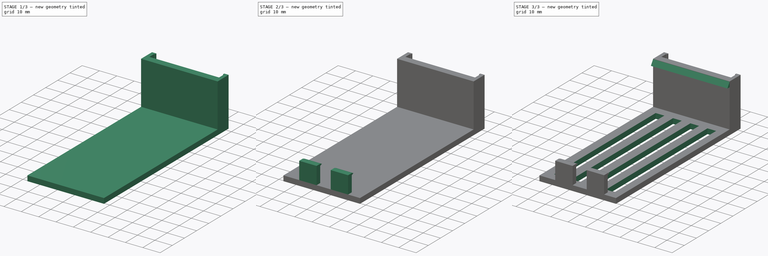
[diagram: build sequence overview — one tinted view per stage of 3, left to right]
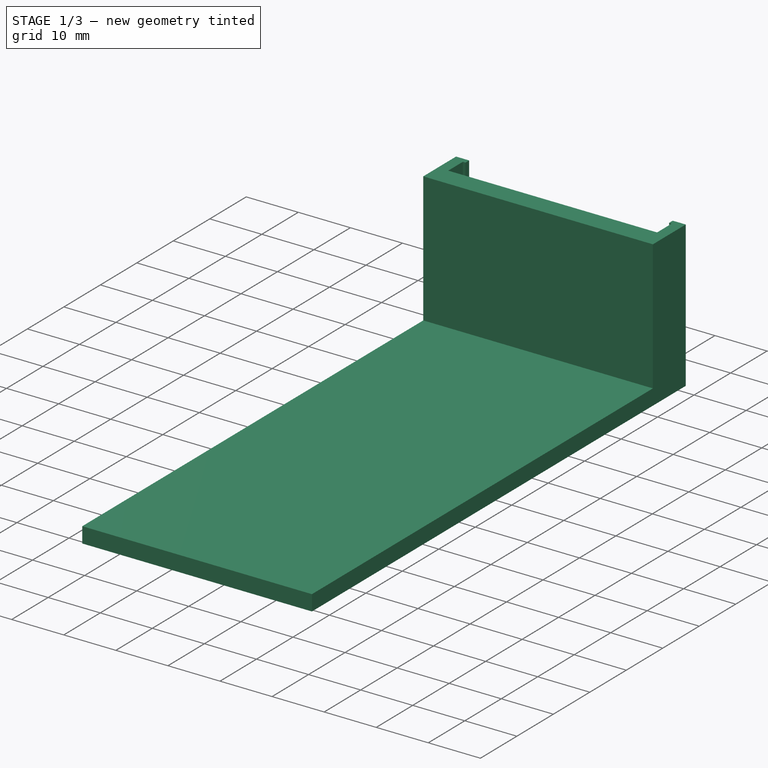
[diagram: stage 1 of 3 — iso view after this stage's code; geometry added in this stage tinted green]
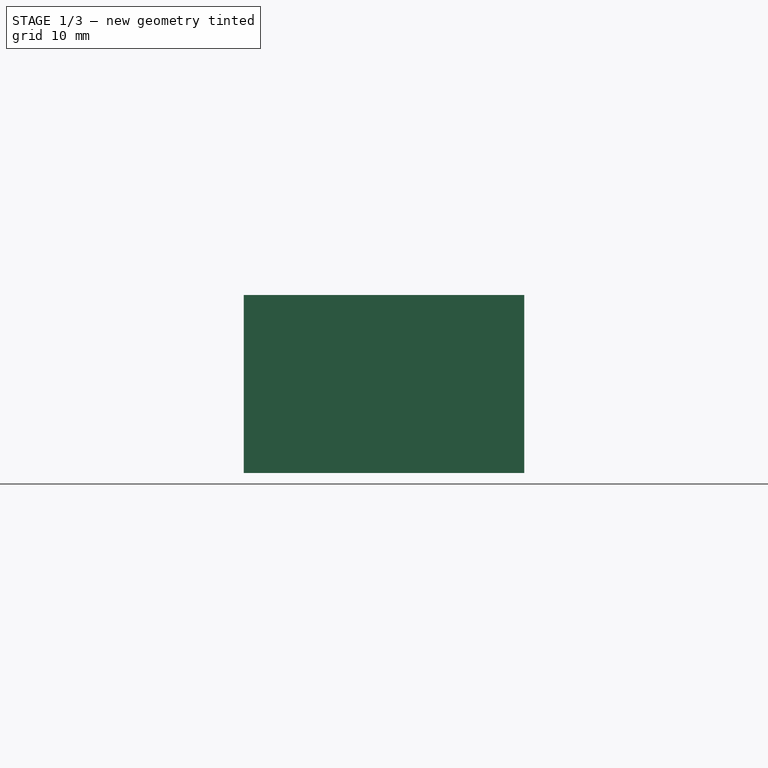
[diagram: stage 1 of 3 — front view after this stage's code; geometry added in this stage tinted green]
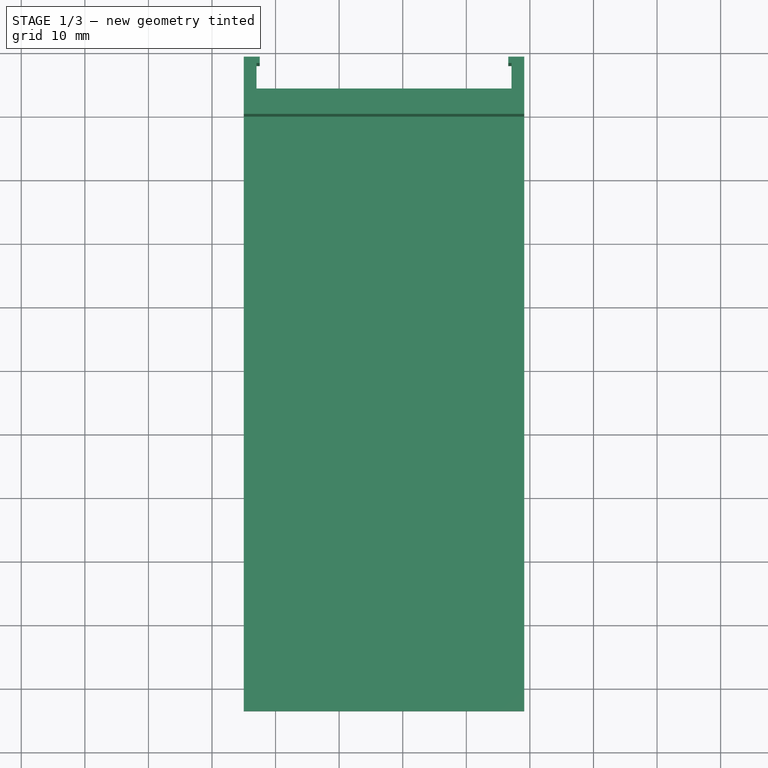
[diagram: stage 1 of 3 — top view after this stage's code; geometry added in this stage tinted green]
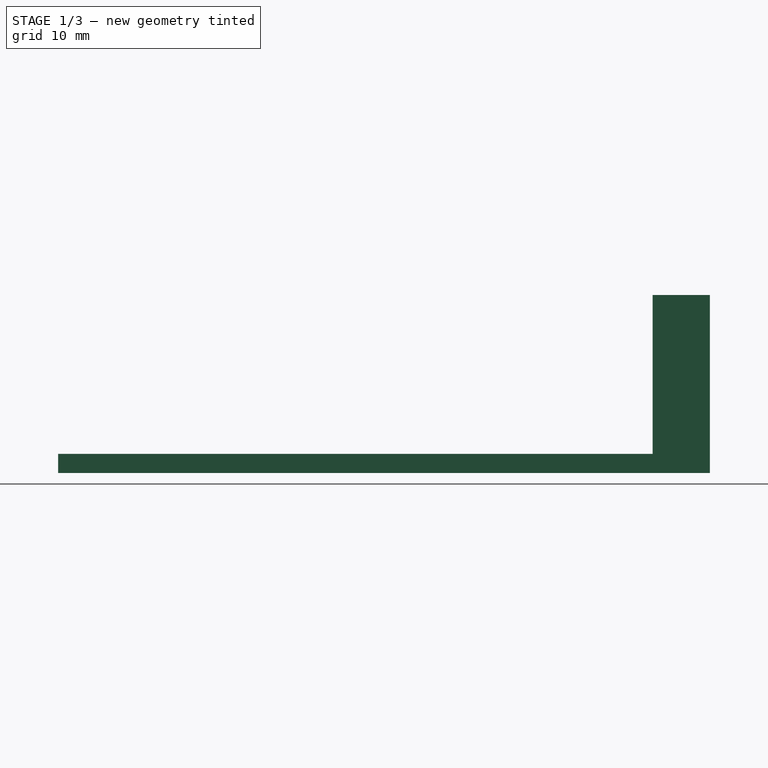
[diagram: stage 1 of 3 — right view after this stage's code; geometry added in this stage tinted green]
FCSTD DOCUMENT  (FreeCAD 0.22R35822 (Git))
Label: ender 3 v3 se mount - revised
License: All rights reserved
LicenseURL: http://en.wikipedia.org/wiki/All_rights_reserved
objects: Sketcher::SketchObject×7, PartDesign::Pad×5, PartDesign::Pocket×1, PartDesign::Body×1
note: 20 computed .brp shape members not serialized (recipe doc carries the construction recipe); baked Part::Feature solids carry a one-line shape summary decoded from their .brp

FEATURE [Sketcher::SketchObject] Sketch
  FullyConstrained = false
  MapMode = 5
  Support = -> [XY_Plane001]
  sketch-geometry (13):
    g0: LineSegment StartX=-4.99733 StartY=9 StartZ=0 EndX=-2.49733 EndY=9 EndZ=0
    g1: LineSegment StartX=-2.49733 StartY=8 StartZ=0 EndX=-2.49733 EndY=9 EndZ=0
    g2: LineSegment StartX=-2.49733 StartY=8 StartZ=0 EndX=-2.99733 EndY=8 EndZ=0
    g3: LineSegment StartX=-2.99733 StartY=8 StartZ=0 EndX=-2.99733 EndY=4 EndZ=0
    g4: LineSegment StartX=-2.99733 StartY=4 StartZ=0 EndX=37.1027 EndY=4 EndZ=0
    g5: LineSegment StartX=37.1027 StartY=4 StartZ=0 EndX=37.1027 EndY=8 EndZ=0
    g6: LineSegment StartX=37.1027 StartY=8 StartZ=0 EndX=36.6027 EndY=8 EndZ=0
    g7: LineSegment StartX=36.6027 StartY=8 StartZ=0 EndX=36.6027 EndY=9 EndZ=0
    g8: LineSegment StartX=36.6027 StartY=9 StartZ=0 EndX=39.1027 EndY=9 EndZ=0
    g9: LineSegment StartX=39.1027 StartY=9 StartZ=0 EndX=39.1027 EndY=0 EndZ=0
    g10: LineSegment StartX=-4.99733 StartY=9 StartZ=0 EndX=-4.99733 EndY=4 EndZ=0
    g11: LineSegment StartX=39.1027 StartY=0 StartZ=0 EndX=-4.99733 EndY=0 EndZ=0
    g12: LineSegment StartX=-4.99733 StartY=4 StartZ=0 EndX=-4.99733 EndY=0 EndZ=0
  constraints (38):
    c: Coincident(g2,g1)
    c: Coincident(g3,g2)
    c: Vertical(g3)
    c: Horizontal(g4)
    c: Coincident(g6,g5)
    c: Coincident(g7,g6)
    c: Vertical(g7)
    c: Coincident(g8,g7)
    c: Horizontal(g8)
    c: Coincident(g9,g8)
    c: Vertical(g9)
    c: Coincident(g1,g0)
    c: DistanceY(g5,g5) = 4
    c: DistanceY(g3,g3) = 4
    c: DistanceY(g9,g9) = 9
    c: DistanceX(g8,g8) = 2.5
    c: DistanceY(g7,g7) = 1
    c: DistanceX(g6,g6) = 0.5
    c: Parallel(g8,g6)
    c: Parallel(g9,g5)
    c: DistanceX(g2,g2) = 0.5
    c: DistanceY(g1,g1) = 1
    c: DistanceX(g0,g0) = 2.5
    c: Angle(g0,g1) = 1.5708
    c: Angle(g3,g2) = 1.5708
    c: Coincident(g4,g3)
    c: Coincident(g5,g4)
    c: Coincident(g10,g0)
    c: Parallel(g3,g10)
    c: Angle(g10,g0) = 1.5708
    c: Horizontal(g11)
    c: Coincident(g11,g9)
    c: DistanceY(g10,g10) = 5
    c: PointOnObject(g12,g-1)
    c: DistanceX(g4,g4) = 40.1
    c: Vertical(g12)
    c: Coincident(g11,g12)
    c: DistanceX(g11,g11) = 44.1  'ClampLength'
FEATURE [PartDesign::Pad] Pad
  Direction = (0,0,1)
  Length = 28
  Length2 = 10
  Profile = -> Sketch
  ReferenceAxis = -> Sketch [N_Axis]
  Type = 0
FEATURE [Sketcher::SketchObject] Sketch001
  AttachmentOffset = pos=(0,0,-29.5) rot=(0,0,1;0rad)
  ExternalGeometry = -> [Pad]
  FullyConstrained = true
  MapMode = 5
  Placement = pos=(9.60267,0,0) rot=(0.57735,0.57735,0.57735;2.0944rad)
  Support = -> [Pad]
  expr: Constraints[2] = Pad.Length
  sketch-geometry (9):
    g0: LineSegment StartX=0.1 StartY=28 StartZ=0 EndX=0.1 EndY=0 EndZ=0
    g1: LineSegment StartX=0.1 StartY=1.1e-15 StartZ=0 EndX=0.1 EndY=3 EndZ=0
    g2: LineSegment StartX=0.1 StartY=3 StartZ=0 EndX=-90.4 EndY=3 EndZ=0
    g3: LineSegment StartX=-93.4 StartY=13.0307 StartZ=0 EndX=-93.4 EndY=1.8e-15 EndZ=0
    g4: LineSegment StartX=-93.4 StartY=1.1e-15 StartZ=0 EndX=0.1 EndY=1.1e-15 EndZ=0
    g5: LineSegment StartX=-93.4 StartY=13.0307 StartZ=0 EndX=-90.4 EndY=13.0307 EndZ=0
    g6: LineSegment StartX=-90.4 StartY=11.5 StartZ=0 EndX=-90.4 EndY=3 EndZ=0
    g7: LineSegment StartX=-90.4 StartY=13.0307 StartZ=0 EndX=-88.5522 EndY=12.2654 EndZ=0
    g8: LineSegment StartX=-88.5522 StartY=12.2654 StartZ=0 EndX=-90.4 EndY=11.5 EndZ=0
  constraints (27):
    c: Vertical(g0)
    c: DistanceX(g-3,g0) = 0.1
    c: DistanceY(g0,g0) = 28
    c: DistanceY(g0,g-3) = 0
    c: Coincident(g1,g2)
    c: Coincident(g3,g4)
    c: Coincident(g4,g1)
    c: Vertical(g1)
    c: Vertical(g3)
    c: Horizontal(g2)
    c: Horizontal(g4)
    c: Coincident(g1,g0)
    c: Coincident(g3,g5)
    c: Horizontal(g5)
    c: Coincident(g6,g2)
    c: DistanceX(g5,g5) = 3
    c: Vertical(g6)
    c: DistanceX(g2,g2) = 90.5
    c: Coincident(g7,g5)
    c: Coincident(g6,g8)
    c: DistanceY(g6,g6) = 8.5
    c: Vertical(g5,g6)
    c: DistanceY(g3,g2) = 3
    c: Coincident(g8,g7)
    c: Angle(g7,g8) = 0.785398
    c: Distance(g7,g7) = 2
    c: Equal(g8,g7)
FEATURE [Sketcher::SketchObject] Sketch002
  ExternalGeometry = -> [Pad]
  FullyConstrained = true
  MapMode = 5
  Placement = pos=(0,0,0) rot=(1,0,0;1.5708rad)
  Support = -> [Pad]
  sketch-geometry (4):
    g0: LineSegment StartX=-4.99733 StartY=0 StartZ=0 EndX=39.1027 EndY=0 EndZ=0
    g1: LineSegment StartX=39.1027 StartY=0 StartZ=0 EndX=39.1027 EndY=3 EndZ=0
    g2: LineSegment StartX=39.1027 StartY=3 StartZ=0 EndX=-4.99733 EndY=3 EndZ=0
    g3: LineSegment StartX=-4.99733 StartY=3 StartZ=0 EndX=-4.99733 EndY=0 EndZ=0
  constraints (11):
    c: Coincident(g0,g1)
    c: Coincident(g1,g2)
    c: Coincident(g2,g3)
    c: Coincident(g3,g0)
    c: Horizontal(g0)
    c: Horizontal(g2)
    c: Vertical(g1)
    c: Vertical(g3)
    c: Coincident(g0,g-5)
    c: PointOnObject(g1,g-4)
    c: DistanceY(g1,g1) = 3
FEATURE [PartDesign::Pad] Pad001
  BaseFeature = -> Pad
  Direction = (0,-1,2e-16)
  Length = 93.5
  Length2 = 10
  Profile = -> Sketch002
  ReferenceAxis = -> Sketch002 [N_Axis]
  Type = 0
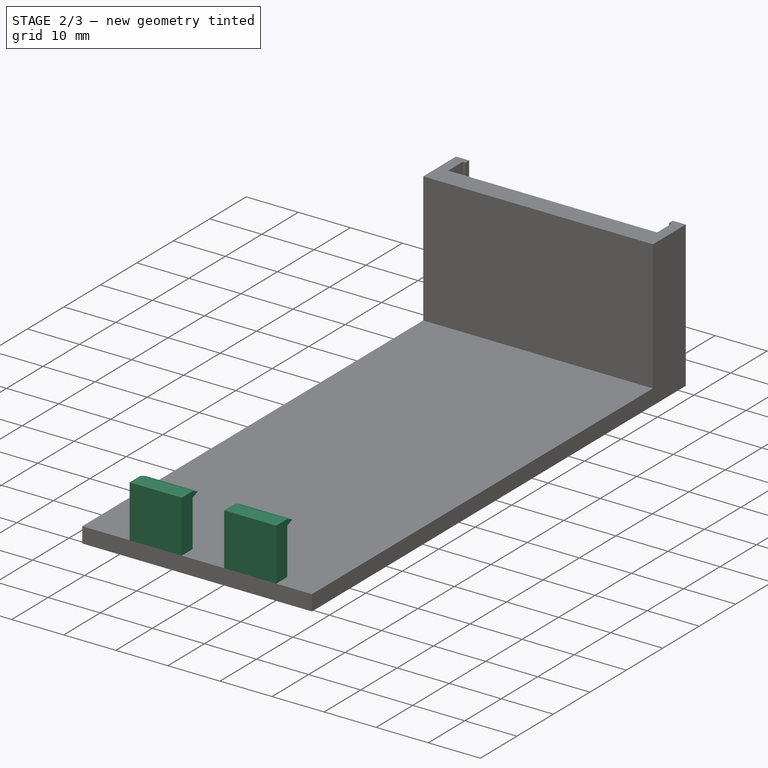
[diagram: stage 2 of 3 — iso view after this stage's code; geometry added in this stage tinted green]
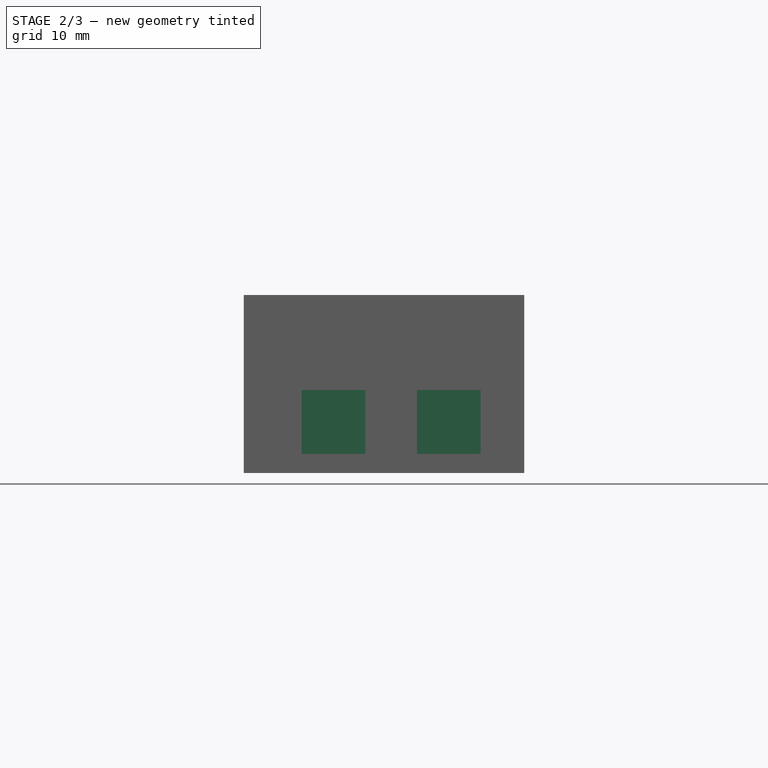
[diagram: stage 2 of 3 — front view after this stage's code; geometry added in this stage tinted green]
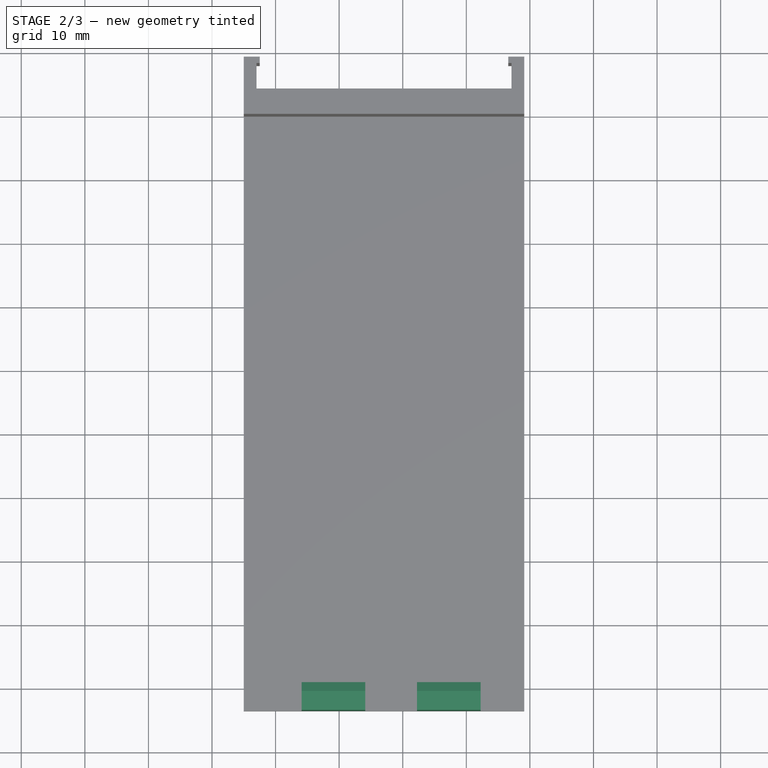
[diagram: stage 2 of 3 — top view after this stage's code; geometry added in this stage tinted green]
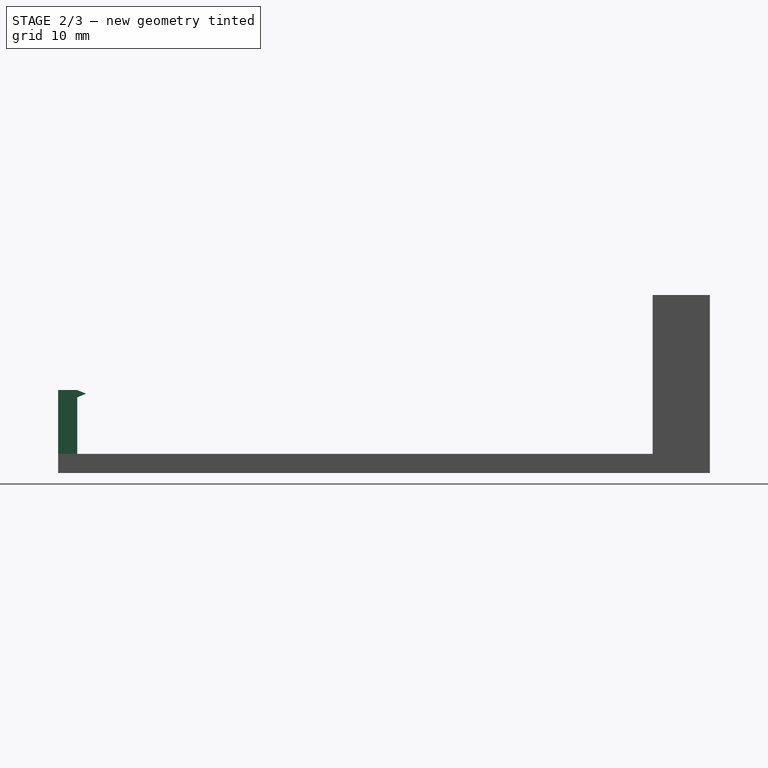
[diagram: stage 2 of 3 — right view after this stage's code; geometry added in this stage tinted green]
FEATURE [Sketcher::SketchObject] Sketch003
  AttachmentOffset = pos=(0,0,-30) rot=(0,0,1;0rad)
  ExternalGeometry = -> [Pad001]
  FullyConstrained = false
  MapMode = 5
  Placement = pos=(9.10267,0,0) rot=(0.57735,0.57735,0.57735;2.0944rad)
  Support = -> [Pad001]
  sketch-geometry (7):
    g0: LineSegment StartX=-93.5 StartY=2.9 StartZ=0 EndX=-79.2734 EndY=2.9 EndZ=0
    g1: LineSegment StartX=-93.5 StartY=2.9 StartZ=0 EndX=-93.5 EndY=13.0481 EndZ=0
    g2: LineSegment StartX=-93.5 StartY=13.0481 StartZ=0 EndX=-90.5 EndY=13.0481 EndZ=0
    g3: LineSegment StartX=-90.5 StartY=13.0481 StartZ=0 EndX=-89.1142 EndY=12.474 EndZ=0
    g4: LineSegment StartX=-89.1142 StartY=12.474 StartZ=0 EndX=-90.5 EndY=11.9 EndZ=0
    g5: LineSegment StartX=-90.5 StartY=11.9 StartZ=0 EndX=-90.5 EndY=2.9 EndZ=0
    g6: LineSegment StartX=-90.5 StartY=2.9 StartZ=0 EndX=-93.5 EndY=2.9 EndZ=0
  constraints (20):
    c: Horizontal(g0)
    c: DistanceY(g0,g-3) = 0.1
    c: Coincident(g0,g1)
    c: Vertical(g1)
    c: Coincident(g1,g2)
    c: Horizontal(g2)
    c: Coincident(g2,g3)
    c: Coincident(g3,g4)
    c: Coincident(g4,g5)
    c: PointOnObject(g5,g0)
    c: Vertical(g5)
    c: Coincident(g5,g6)
    c: Coincident(g6,g1)
    c: DistanceX(g1,g-3) = 0
    c: DistanceX(g6,g6) = 3
    c: Distance(g2,g2) = 3
    c: DistanceY(g5,g5) = 9
    c: Angle(g3,g4) = 0.785398
    c: Distance(g3,g3) = 1.5
    c: Distance(g4,g4) = 1.5
FEATURE [Sketcher::SketchObject] Sketch004
  AttachmentOffset = pos=(0,0,-11.85) rot=(0,0,1;0rad)
  ExternalGeometry = -> [Pad001]
  FullyConstrained = false
  MapMode = 5
  Placement = pos=(27.2527,0,0) rot=(0.57735,0.57735,0.57735;2.0944rad)
  Support = -> [Pad001]
  sketch-geometry (7):
    g0: LineSegment StartX=-93.5 StartY=2.9 StartZ=0 EndX=-79.2734 EndY=2.9 EndZ=0
    g1: LineSegment StartX=-93.5 StartY=2.9 StartZ=0 EndX=-93.5 EndY=13.0481 EndZ=0
    g2: LineSegment StartX=-93.5 StartY=13.0481 StartZ=0 EndX=-90.5 EndY=13.0481 EndZ=0
    g3: LineSegment StartX=-90.5 StartY=13.0481 StartZ=0 EndX=-89.1142 EndY=12.474 EndZ=0
    g4: LineSegment StartX=-89.1142 StartY=12.474 StartZ=0 EndX=-90.5 EndY=11.9 EndZ=0
    g5: LineSegment StartX=-90.5 StartY=11.9 StartZ=0 EndX=-90.5 EndY=2.9 EndZ=0
    g6: LineSegment StartX=-90.5 StartY=2.9 StartZ=0 EndX=-93.5 EndY=2.9 EndZ=0
  constraints (20):
    c: Horizontal(g0)
    c: DistanceY(g0,g-3) = 0.1
    c: Coincident(g0,g1)
    c: Vertical(g1)
    c: Coincident(g1,g2)
    c: Horizontal(g2)
    c: Coincident(g2,g3)
    c: Coincident(g3,g4)
    c: Coincident(g4,g5)
    c: PointOnObject(g5,g0)
    c: Vertical(g5)
    c: Coincident(g5,g6)
    c: Coincident(g6,g1)
    c: DistanceX(g1,g-3) = 0
    c: DistanceX(g6,g6) = 3
    c: Distance(g2,g2) = 3
    c: DistanceY(g5,g5) = 9
    c: Angle(g3,g4) = 0.785398
    c: Distance(g3,g3) = 1.5
    c: Distance(g4,g4) = 1.5
FEATURE [PartDesign::Pad] Pad002
  BaseFeature = -> Pad001
  Direction = (1,0,0)
  Length = 10
  Length2 = 10
  Midplane = true
  Profile = -> Sketch003
  ReferenceAxis = -> Sketch003 [N_Axis]
  Type = 0
FEATURE [PartDesign::Pad] Pad003
  BaseFeature = -> Pad002
  Direction = (1,0,0)
  Length = 10
  Length2 = 10
  Midplane = true
  Profile = -> Sketch004
  ReferenceAxis = -> Sketch004 [N_Axis]
  Type = 0
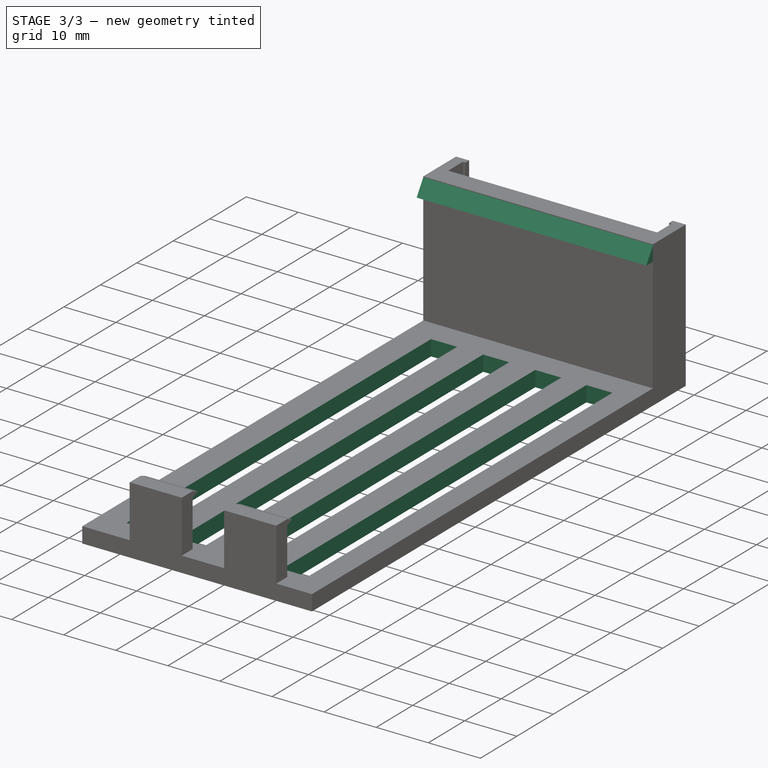
[diagram: stage 3 of 3 — iso view after this stage's code; geometry added in this stage tinted green]
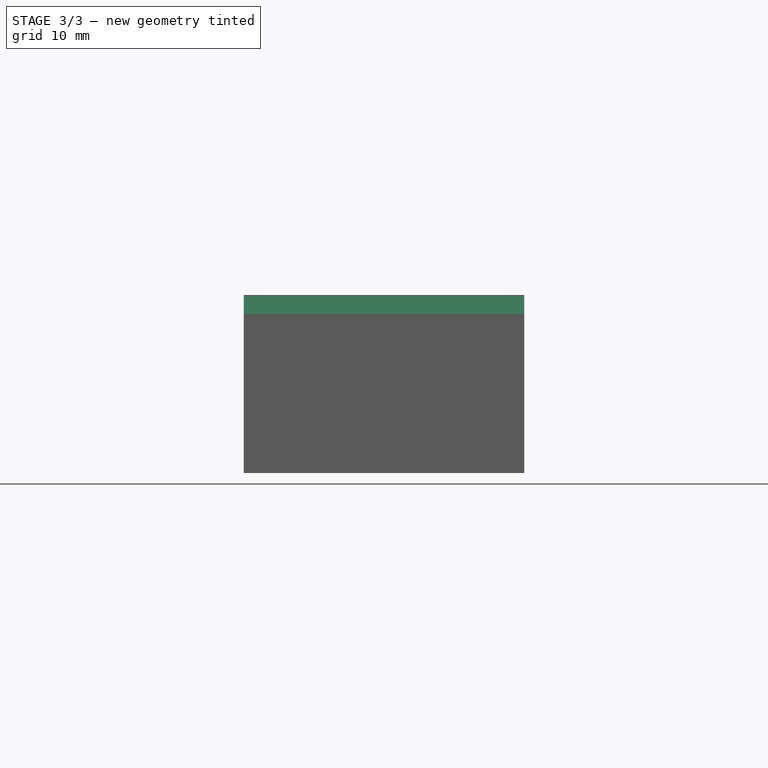
[diagram: stage 3 of 3 — front view after this stage's code; geometry added in this stage tinted green]
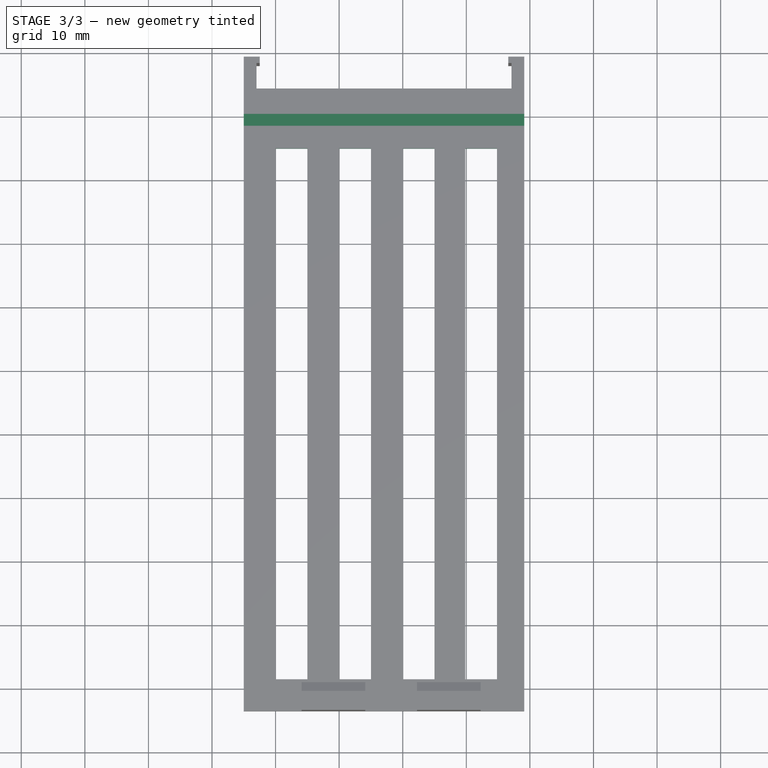
[diagram: stage 3 of 3 — top view after this stage's code; geometry added in this stage tinted green]
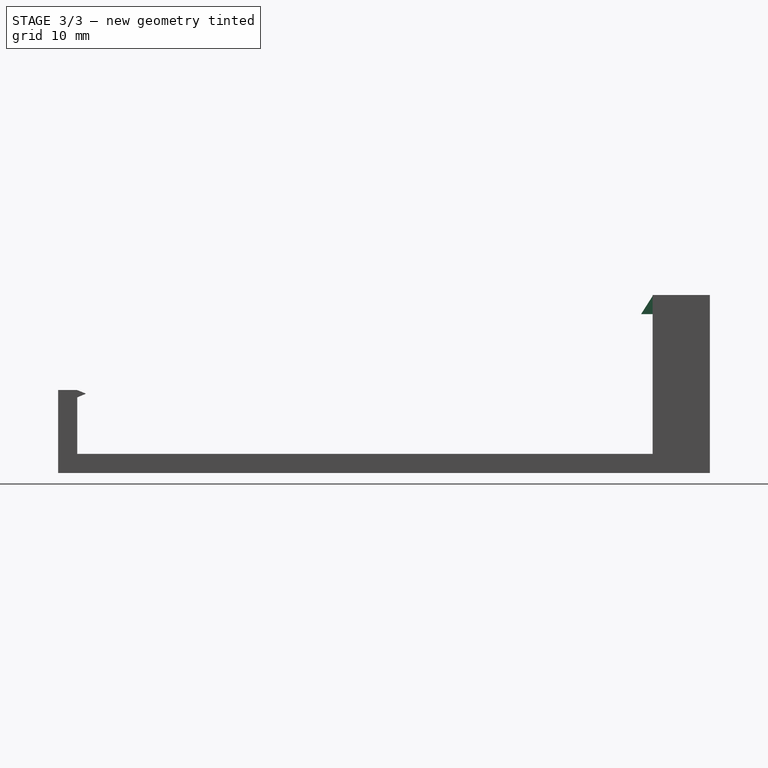
[diagram: stage 3 of 3 — right view after this stage's code; geometry added in this stage tinted green]
FEATURE [Sketcher::SketchObject] Sketch005
  ExternalGeometry = -> [Pad003]
  FullyConstrained = false
  MapMode = 5
  Placement = pos=(39.1027,0,0) rot=(0.57735,0.57735,0.57735;2.0944rad)
  Support = -> [Pad003]
  sketch-geometry (4):
    g0: LineSegment StartX=0.1 StartY=28 StartZ=0 EndX=0.1 EndY=13.8722 EndZ=0
    g1: LineSegment StartX=0.1 StartY=28 StartZ=0 EndX=-1.80795 EndY=25 EndZ=0
    g2: LineSegment StartX=-1.80795 StartY=25 StartZ=0 EndX=0.1 EndY=25 EndZ=0
    g3: LineSegment StartX=0.1 StartY=25 StartZ=0 EndX=0.1 EndY=28 EndZ=0
  constraints (11):
    c: Vertical(g0)
    c: DistanceX(g-3,g0) = 0.1
    c: DistanceY(g0,g-3) = 0
    c: PointOnObject(g1,g0)
    c: Coincident(g1,g2)
    c: PointOnObject(g2,g0)
    c: DistanceY(g-3,g2) = 22
    c: Coincident(g3,g2)
    c: Coincident(g3,g1)
    c: DistanceY(g1,g-3) = 0
    c: Horizontal(g2)
FEATURE [PartDesign::Pad] Pad004
  BaseFeature = -> Pad003
  Direction = (1,0,0)
  Length = 44.1
  Length2 = 10
  Profile = -> Sketch005
  ReferenceAxis = -> Sketch005 [N_Axis]
  Reversed = true
  Type = 0
  expr: Length = Sketch.Constraints.ClampLength
FEATURE [Sketcher::SketchObject] Sketch006
  ExternalGeometry = -> [Pad004]
  FullyConstrained = false
  MapMode = 5
  Placement = pos=(0,7e-16,3) rot=(0,0,1;0rad)
  Support = -> [Pad004]
  sketch-geometry (16):
    g0: LineSegment StartX=29.8287 StartY=-5 StartZ=0 EndX=29.8287 EndY=-88.5 EndZ=0
    g1: LineSegment StartX=29.8287 StartY=-88.5 StartZ=0 EndX=34.8287 EndY=-88.5 EndZ=0
    g2: LineSegment StartX=34.8287 StartY=-88.5 StartZ=0 EndX=34.8287 EndY=-5 EndZ=0
    g3: LineSegment StartX=34.8287 StartY=-5 StartZ=0 EndX=29.8287 EndY=-5 EndZ=0
    g4: LineSegment StartX=0.00266775 StartY=-5 StartZ=0 EndX=0.00266775 EndY=-88.5 EndZ=0
    g5: LineSegment StartX=0.00266775 StartY=-88.5 StartZ=0 EndX=5.00267 EndY=-88.5 EndZ=0
    g6: LineSegment StartX=5.00267 StartY=-88.5 StartZ=0 EndX=5.00267 EndY=-5 EndZ=0
    g7: LineSegment StartX=5.00267 StartY=-5 StartZ=0 EndX=0.00266775 EndY=-5 EndZ=0
    g8: LineSegment StartX=10.0027 StartY=-5 StartZ=0 EndX=10.0027 EndY=-88.5 EndZ=0
    g9: LineSegment StartX=10.0027 StartY=-88.5 StartZ=0 EndX=15.0027 EndY=-88.5 EndZ=0
    g10: LineSegment StartX=15.0027 StartY=-88.5 StartZ=0 EndX=15.0027 EndY=-5 EndZ=0
    g11: LineSegment StartX=15.0027 StartY=-5 StartZ=0 EndX=10.0027 EndY=-5 EndZ=0
    g12: LineSegment StartX=20.0027 StartY=-5 StartZ=0 EndX=20.0027 EndY=-88.5 EndZ=0
    g13: LineSegment StartX=20.0027 StartY=-88.5 StartZ=0 EndX=25.0027 EndY=-88.5 EndZ=0
    g14: LineSegment StartX=25.0027 StartY=-88.5 StartZ=0 EndX=25.0027 EndY=-5 EndZ=0
    g15: LineSegment StartX=25.0027 StartY=-5 StartZ=0 EndX=20.0027 EndY=-5 EndZ=0
  constraints (47):
    c: Coincident(g0,g1)
    c: Coincident(g1,g2)
    c: Coincident(g2,g3)
    c: Coincident(g3,g0)
    c: Vertical(g0)
    c: Vertical(g2)
    c: Horizontal(g1)
    c: Horizontal(g3)
    c: Distance(g1,g1) = 5
    c: DistanceY(g2,g-3) = 5
    c: DistanceY(g-3,g1) = 5
    c: Coincident(g4,g5)
    c: Coincident(g5,g6)
    c: Coincident(g6,g7)
    c: Coincident(g7,g4)
    c: Vertical(g4)
    c: Vertical(g6)
    c: Horizontal(g5)
    c: Horizontal(g7)
    c: DistanceX(g-4,g4) = 5
    c: Equal(g7,g3)
    c: DistanceY(g-4,g4) = 5
    c: Coincident(g8,g9)
    c: Coincident(g9,g10)
    c: Coincident(g10,g11)
    c: Coincident(g11,g8)
    c: Vertical(g8)
    c: Vertical(g10)
    c: Horizontal(g9)
    c: Horizontal(g11)
    c: Equal(g11,g7)
    c: Horizontal(g8,g6)
    c: Horizontal(g6,g0)
    c: Horizontal(g4,g8)
    c: DistanceX(g6,g8) = 5
    c: Coincident(g12,g13)
    c: Coincident(g13,g14)
    c: Coincident(g14,g15)
    c: Coincident(g15,g12)
    c: Vertical(g12)
    c: Vertical(g14)
    c: Horizontal(g13)
    c: Horizontal(g15)
    c: Equal(g15,g11)
    c: Horizontal(g12,g10)
    c: Horizontal(g12,g9)
    c: DistanceX(g10,g12) = 5
FEATURE [PartDesign::Pocket] Pocket
  BaseFeature = -> Pad004
  Direction = (0,0,-1)
  Length = 5
  Length2 = 5
  Profile = -> Sketch006
  ReferenceAxis = -> Sketch006 [N_Axis]
  Type = 0
FEATURE [PartDesign::Body] Body
  Group = -> [Sketch,Pad,Sketch001,Sketch002,Pad001,Sketch003,Sketch004,Pad002,Pad003,Sketch005,Pad004,Sketch006,Pocket]
  Origin = -> Origin
  Tip = -> Pocket
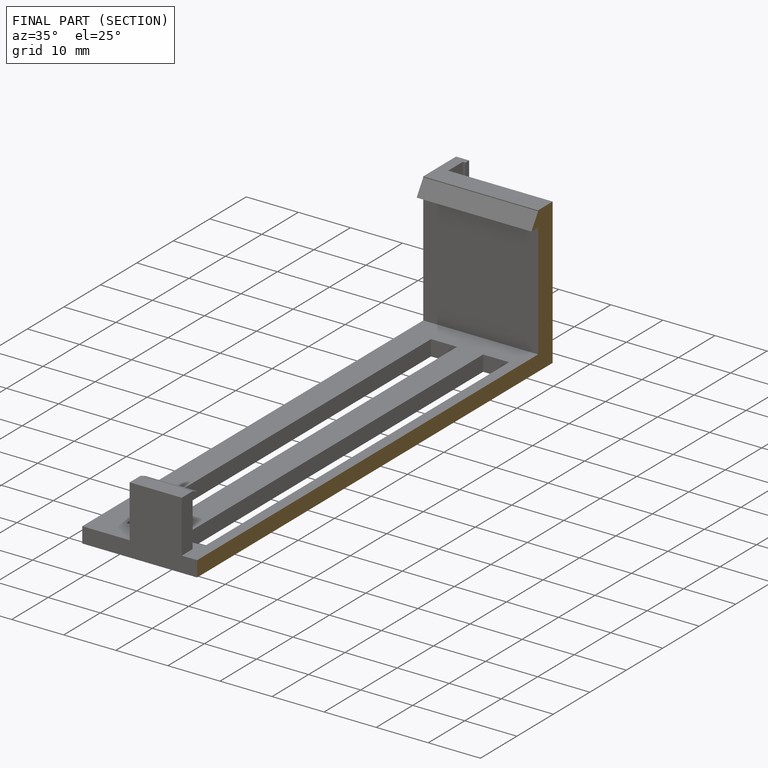
[diagram: finished part — half-section view (interior)]
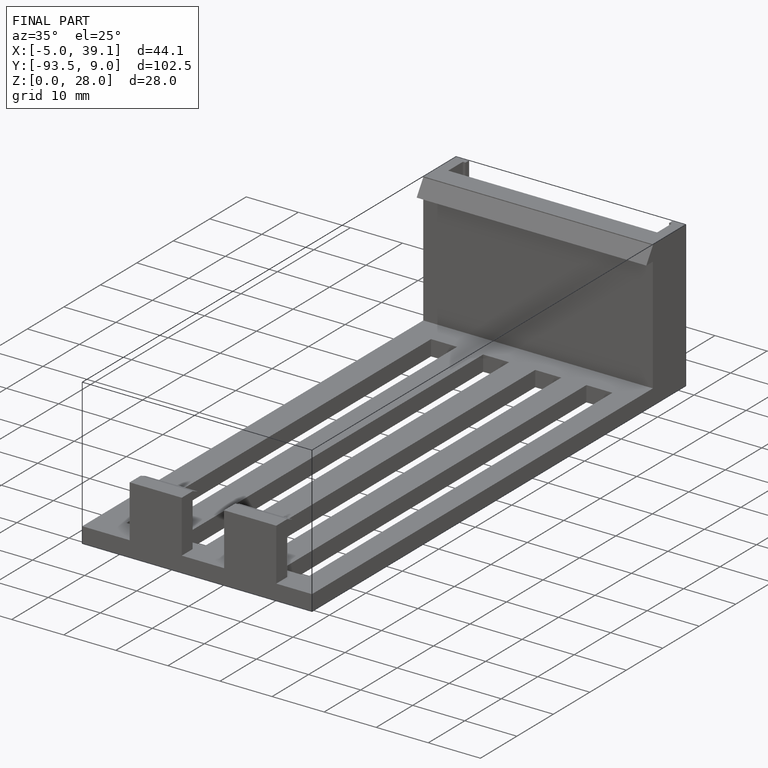
[diagram: finished part — iso view with bounding-box wireframe]
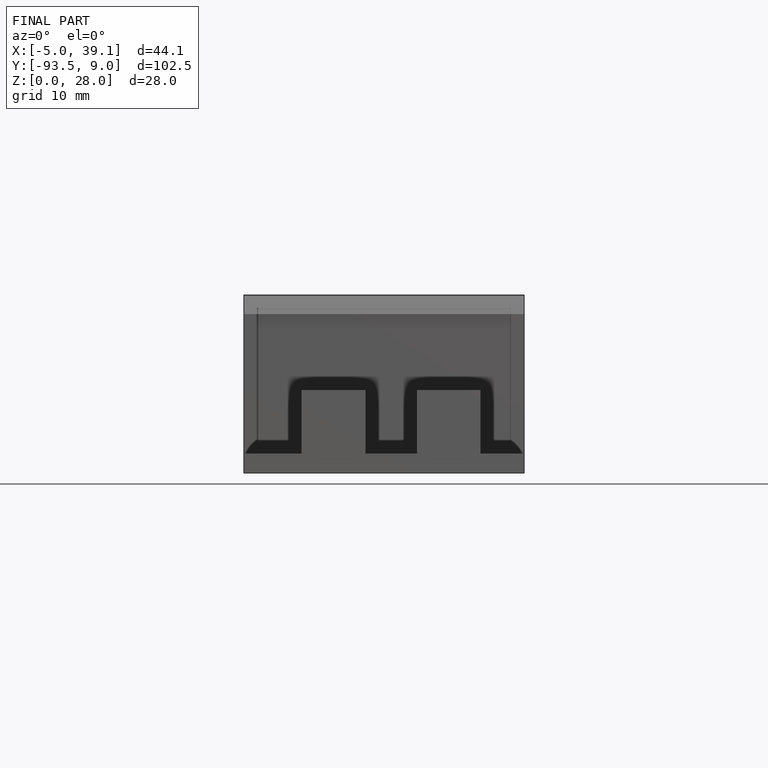
[diagram: finished part — front view with bounding-box wireframe]
